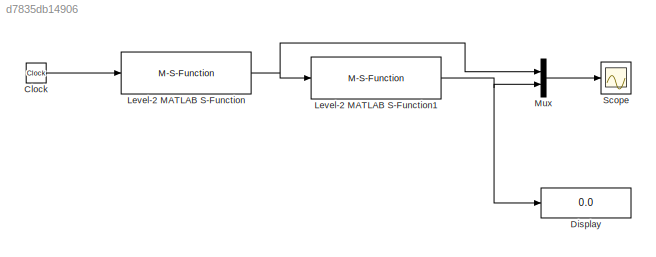
MODEL slx_d7835db14906
KIND model
CONFIG InitFcn = PockelsObject.clearPockels();
BLOCK [Clock] Clock
BLOCK [Display] Display
  Decimation = 1
  Ports = [1]
BLOCK [M-S-Function] Level-2 MATLAB S-Function
  FunctionName = pockels_cell_s
  Parameters = P.PCTimings, P.ControlPowers
  Ports = [1, 1]
BLOCK [M-S-Function] Level-2 MATLAB S-Function1
  FunctionName = pockels_cell_s
  Parameters = [-1,1,38,40,103,105,168,170,220,222,272,274]*1e-9, [0.5000, 1.0000,1.0000, 1.0000, 1.0000, 0.5000]
  Ports = [1, 1]
BLOCK [Mux] Mux
  DisplayOption = bar
  Inputs = 2
  Ports = [2, 1]
BLOCK [Scope] Scope
  Floating = off
  NumInputPorts = 1
  Ports = [1]
  ShowLegends = off
LINE Clock:1 -> Level-2 MATLAB S-Function:1
NET Level-2 MATLAB S-Function1:1 -> Display:1, Mux:2
NET Level-2 MATLAB S-Function:1 -> Level-2 MATLAB S-Function1:1, Mux:1
LINE Mux:1 -> Scope:1
note: NET lines group one-source signal fan-out (src -> all destinations, sorted); 1:1 wires keep LINE
